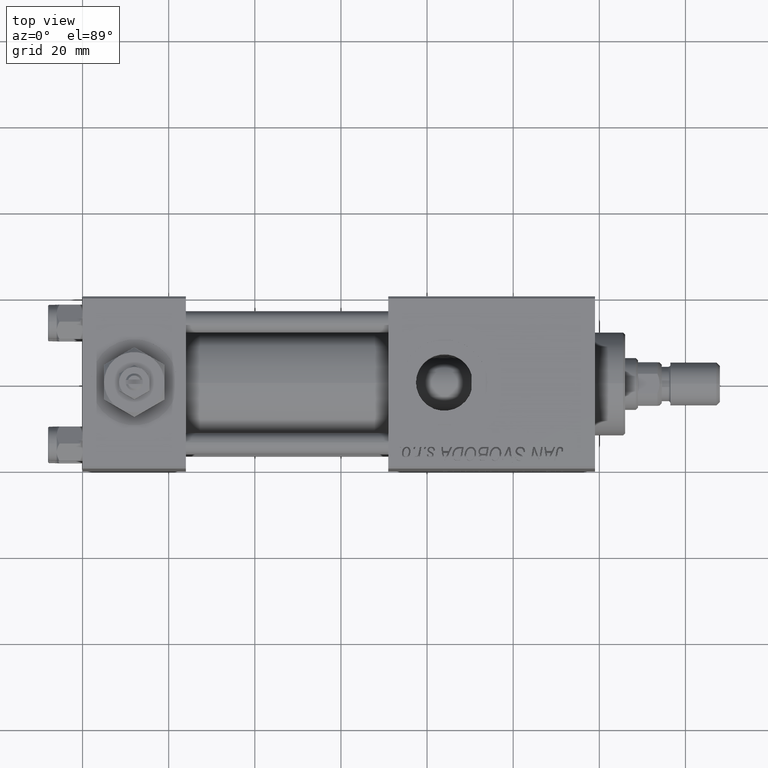
[diagram: clean part render]
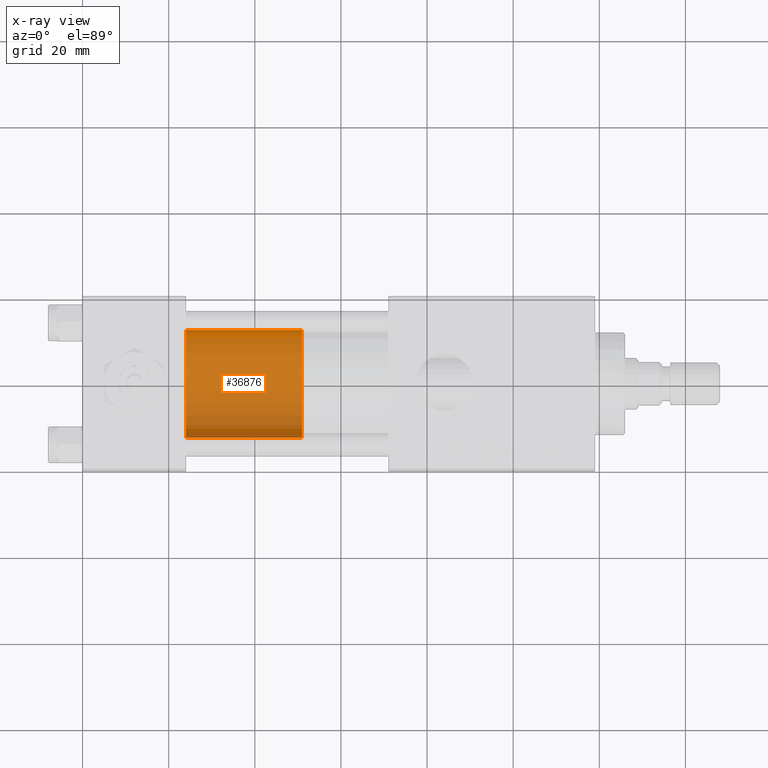
[diagram: x-ray — body ghosted, one internal face saturated and labeled with its STEP entity id]
A machine part, top view, then the same camera in x-ray: the body is ghosted and one INTERNAL B-rep face — a face not visible from any outside direction — is saturated and labeled: STEP entity #36876.
In plain terms, the highlighted cylindrical surface (partial cylindrical patch) has radius 12.5 mm, axis along (-1, 0, 0).
Its self-contained STEP definition (entity closure, byte-faithful):
#798 = EDGE_CURVE ( 'NONE', #15285, #51376, #44609, .T. ) ;
#4369 = DIRECTION ( 'NONE',  ( -0.000000000000000000, -0.000000000000000000, -1.000000000000000000 ) ) ;
#6305 = AXIS2_PLACEMENT_3D ( 'NONE', #37074, #4369, #20575 ) ;
#6559 = EDGE_LOOP ( 'NONE', ( #40330, #12422, #30910, #46037 ) ) ;
#8317 = EDGE_CURVE ( 'NONE', #51376, #17271, #23902, .T. ) ;
#8358 = FACE_OUTER_BOUND ( 'NONE', #6559, .T. ) ;
#8874 = CYLINDRICAL_SURFACE ( 'NONE', #6305, 12.50000000000000000 ) ;
#9870 = CARTESIAN_POINT ( 'NONE',  ( 12.50000000000000000, 1.530808498934191521E-15, 27.00000000000000000 ) ) ;
#10908 = CARTESIAN_POINT ( 'NONE',  ( 0.000000000000000000, 0.000000000000000000, 0.000000000000000000 ) ) ;
#11367 = CARTESIAN_POINT ( 'NONE',  ( -12.50000000000000000, 0.000000000000000000, 0.000000000000000000 ) ) ;
#11958 = DIRECTION ( 'NONE',  ( -0.000000000000000000, -0.000000000000000000, -1.000000000000000000 ) ) ;
#12422 = ORIENTED_EDGE ( 'NONE', *, *, #16876, .T. ) ;
#13157 = AXIS2_PLACEMENT_3D ( 'NONE', #38989, #43238, #31243 ) ;
#15285 = VERTEX_POINT ( 'NONE', #33290 ) ;
#16876 = EDGE_CURVE ( 'NONE', #15285, #18832, #46054, .T. ) ;
#17271 = VERTEX_POINT ( 'NONE', #11367 ) ;
#18832 = VERTEX_POINT ( 'NONE', #22530 ) ;
#18892 = CIRCLE ( 'NONE', #48674, 12.50000000000000000 ) ;
#19115 = CARTESIAN_POINT ( 'NONE',  ( -12.50000000000000000, 0.000000000000000000, 27.00000000000000000 ) ) ;
#20575 = DIRECTION ( 'NONE',  ( -1.000000000000000000, 0.000000000000000000, 0.000000000000000000 ) ) ;
#22530 = CARTESIAN_POINT ( 'NONE',  ( 12.50000000000000000, 1.530808498934191521E-15, 0.000000000000000000 ) ) ;
#23370 = DIRECTION ( 'NONE',  ( 1.000000000000000000, 0.000000000000000000, 0.000000000000000000 ) ) ;
#23902 = LINE ( 'NONE', #19115, #49837 ) ;
#29411 = EDGE_CURVE ( 'NONE', #18832, #17271, #18892, .T. ) ;
#30910 = ORIENTED_EDGE ( 'NONE', *, *, #29411, .T. ) ;
#31243 = DIRECTION ( 'NONE',  ( 1.000000000000000000, 0.000000000000000000, 0.000000000000000000 ) ) ;
#31599 = CARTESIAN_POINT ( 'NONE',  ( -12.50000000000000000, 0.000000000000000000, 27.00000000000000000 ) ) ;
#33290 = CARTESIAN_POINT ( 'NONE',  ( 12.50000000000000000, 1.530808498934191521E-15, 27.00000000000000000 ) ) ;
#36166 = DIRECTION ( 'NONE',  ( 0.000000000000000000, 0.000000000000000000, 1.000000000000000000 ) ) ;
#36442 = VECTOR ( 'NONE', #38329, 1000.000000000000000 ) ;
#36876 = ADVANCED_FACE ( 'NONE', ( #8358 ), #8874, .T. ) ;
#37074 = CARTESIAN_POINT ( 'NONE',  ( 0.000000000000000000, 0.000000000000000000, 27.00000000000000000 ) ) ;
#38329 = DIRECTION ( 'NONE',  ( -0.000000000000000000, -0.000000000000000000, -1.000000000000000000 ) ) ;
#38989 = CARTESIAN_POINT ( 'NONE',  ( 0.000000000000000000, 0.000000000000000000, 27.00000000000000000 ) ) ;
#40330 = ORIENTED_EDGE ( 'NONE', *, *, #798, .F. ) ;
#43238 = DIRECTION ( 'NONE',  ( 0.000000000000000000, 0.000000000000000000, 1.000000000000000000 ) ) ;
#44609 = CIRCLE ( 'NONE', #13157, 12.50000000000000000 ) ;
#46037 = ORIENTED_EDGE ( 'NONE', *, *, #8317, .F. ) ;
#46054 = LINE ( 'NONE', #9870, #36442 ) ;
#48674 = AXIS2_PLACEMENT_3D ( 'NONE', #10908, #36166, #23370 ) ;
#49837 = VECTOR ( 'NONE', #11958, 1000.000000000000000 ) ;
#51376 = VERTEX_POINT ( 'NONE', #31599 ) ;